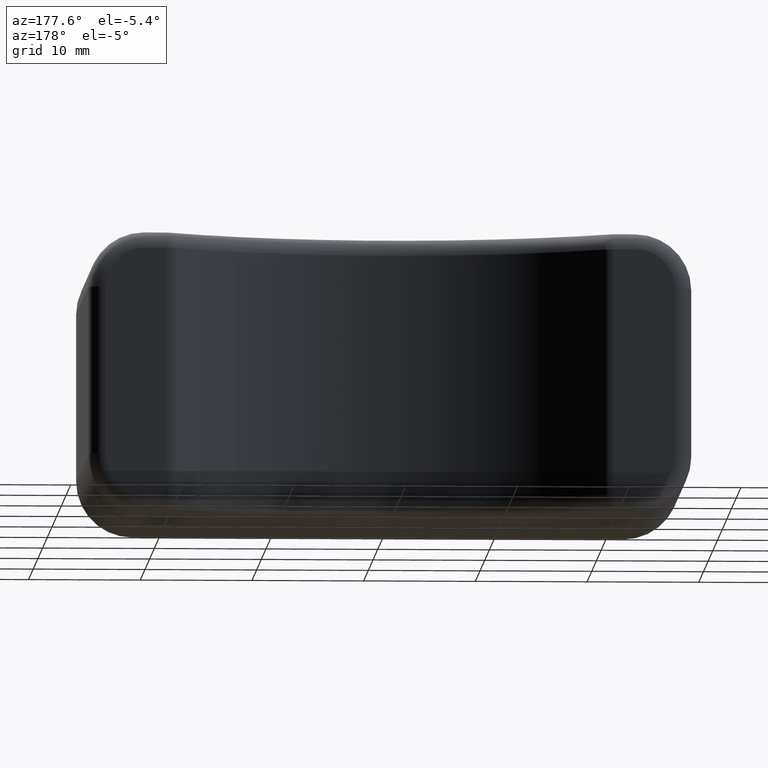
[diagram: clean part render]
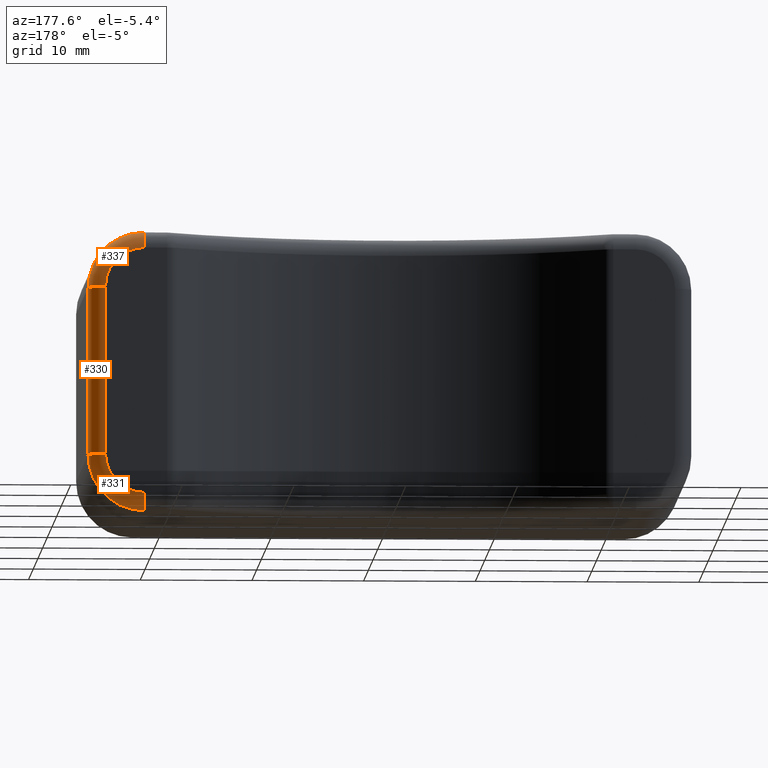
[diagram: same view with one multi-face feature highlighted, each face labeled with its STEP entity id]
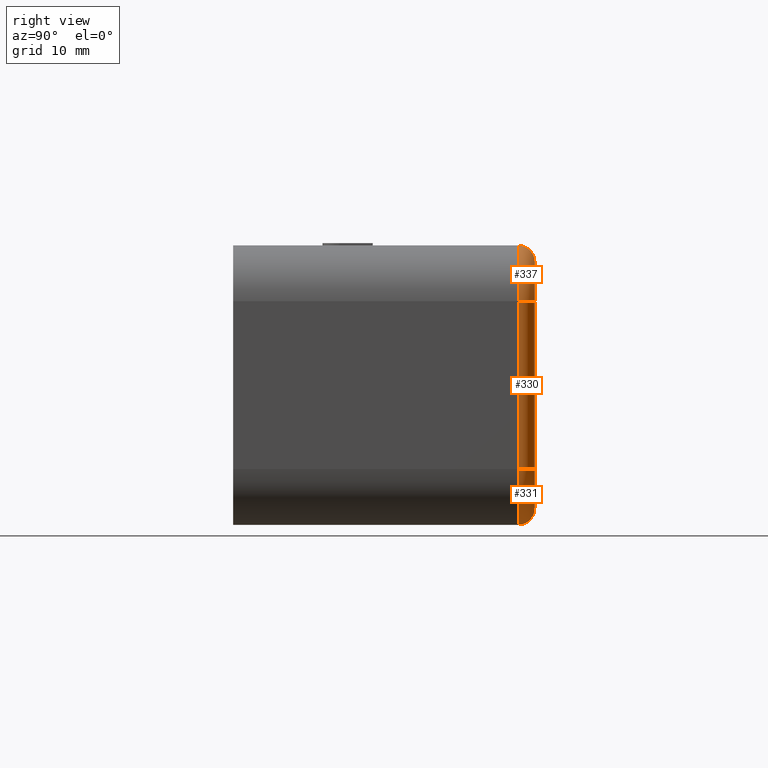
[diagram: same view with one multi-face feature highlighted, each face labeled with its STEP entity id]
A machine part, auxiliary view. The highlighted faces form ONE feature: a constant-radius fillet chain: 3 tangent blend faces with common blend radius 1.5 mm. The faces share edges in the B-rep.
A second angle (right view) of the same feature is appended — it is thin or edge-on in the first view.
Their STEP definitions:
[1] entity #337 (Torus):
#337 = ADVANCED_FACE( '', ( #972 ), #973, .T. );
#972 = FACE_OUTER_BOUND( '', #1672, .T. );
#973 = TOROIDAL_SURFACE( '', #1673, 3.50000000000000, 1.50000000000000 );
#1672 = EDGE_LOOP( '', ( #3931, #3932, #3933, #3934 ) );
#1673 = AXIS2_PLACEMENT_3D( '', #3935, #3936, #3937 );
#3931 = ORIENTED_EDGE( '', *, *, #5216, .F. );
#3932 = ORIENTED_EDGE( '', *, *, #4743, .F. );
#3933 = ORIENTED_EDGE( '', *, *, #5207, .F. );
#3934 = ORIENTED_EDGE( '', *, *, #5202, .F. );
#3935 = CARTESIAN_POINT( '', ( 22.0000000000000, 25.5000000000000, 7.50000000000000 ) );
#3936 = DIRECTION( '', ( 0.000000000000000, 1.00000000000000, 0.000000000000000 ) );
#3937 = DIRECTION( '', ( 0.000000000000000, 0.000000000000000, 1.00000000000000 ) );
#4743 = EDGE_CURVE( '', #5848, #5776, #5850, .F. );
#5202 = EDGE_CURVE( '', #6548, #6550, #6551, .T. );
#5207 = EDGE_CURVE( '', #6550, #5848, #6557, .T. );
#5216 = EDGE_CURVE( '', #5776, #6548, #6566, .T. );
#5776 = VERTEX_POINT( '', #7394 );
#5848 = VERTEX_POINT( '', #7494 );
#5850 = CIRCLE( '', #7497, 5.00000000000000 );
#6548 = VERTEX_POINT( '', #8541 );
#6550 = VERTEX_POINT( '', #8544 );
#6551 = CIRCLE( '', #8545, 3.50000000000000 );
#6557 = CIRCLE( '', #8553, 1.50000000000000 );
#6566 = CIRCLE( '', #8562, 1.50000000000000 );
#7394 = CARTESIAN_POINT( '', ( 22.0000000000000, 25.5000000000000, 12.5000000000000 ) );
#7494 = CARTESIAN_POINT( '', ( 27.0000000000000, 25.5000000000000, 7.50000000000000 ) );
#7497 = AXIS2_PLACEMENT_3D( '', #9029, #9030, #9031 );
#8541 = CARTESIAN_POINT( '', ( 22.0000000000000, 27.0000000000000, 11.0000000000000 ) );
#8544 = CARTESIAN_POINT( '', ( 25.5000000000000, 27.0000000000000, 7.50000000000000 ) );
#8545 = AXIS2_PLACEMENT_3D( '', #9712, #9713, #9714 );
#8553 = AXIS2_PLACEMENT_3D( '', #9723, #9724, #9725 );
#8562 = AXIS2_PLACEMENT_3D( '', #9750, #9751, #9752 );
#9029 = CARTESIAN_POINT( '', ( 22.0000000000000, 25.5000000000000, 7.50000000000000 ) );
#9030 = DIRECTION( '', ( 0.000000000000000, 1.00000000000000, 0.000000000000000 ) );
#9031 = DIRECTION( '', ( 0.000000000000000, 0.000000000000000, 1.00000000000000 ) );
#9712 = CARTESIAN_POINT( '', ( 22.0000000000000, 27.0000000000000, 7.50000000000000 ) );
#9713 = DIRECTION( '', ( 0.000000000000000, 1.00000000000000, 0.000000000000000 ) );
#9714 = DIRECTION( '', ( 0.000000000000000, 0.000000000000000, 1.00000000000000 ) );
#9723 = CARTESIAN_POINT( '', ( 25.5000000000000, 25.5000000000000, 7.50000000000000 ) );
#9724 = DIRECTION( '', ( 0.000000000000000, 0.000000000000000, -1.00000000000000 ) );
#9725 = DIRECTION( '', ( -1.00000000000000, 0.000000000000000, 0.000000000000000 ) );
#9750 = CARTESIAN_POINT( '', ( 22.0000000000000, 25.5000000000000, 11.0000000000000 ) );
#9751 = DIRECTION( '', ( -1.00000000000000, 0.000000000000000, 0.000000000000000 ) );
#9752 = DIRECTION( '', ( 0.000000000000000, 0.000000000000000, 1.00000000000000 ) );
[2] entity #330 (Cylinder):
#330 = ADVANCED_FACE( '', ( #958 ), #959, .T. );
#958 = FACE_OUTER_BOUND( '', #1658, .T. );
#959 = CYLINDRICAL_SURFACE( '', #1659, 1.50000000000000 );
#1658 = EDGE_LOOP( '', ( #3883, #3884, #3885, #3886 ) );
#1659 = AXIS2_PLACEMENT_3D( '', #3887, #3888, #3889 );
#3883 = ORIENTED_EDGE( '', *, *, #5207, .T. );
#3884 = ORIENTED_EDGE( '', *, *, #5205, .F. );
#3885 = ORIENTED_EDGE( '', *, *, #5208, .F. );
#3886 = ORIENTED_EDGE( '', *, *, #5203, .F. );
#3887 = CARTESIAN_POINT( '', ( 25.5000000000000, 25.5000000000000, -12.5000000000000 ) );
#3888 = DIRECTION( '', ( 0.000000000000000, 0.000000000000000, -1.00000000000000 ) );
#3889 = DIRECTION( '', ( 1.00000000000000, 0.000000000000000, 0.000000000000000 ) );
#5203 = EDGE_CURVE( '', #6550, #6552, #6553, .F. );
#5205 = EDGE_CURVE( '', #5844, #5848, #6555, .T. );
#5207 = EDGE_CURVE( '', #6550, #5848, #6557, .T. );
#5208 = EDGE_CURVE( '', #6552, #5844, #6558, .T. );
#5844 = VERTEX_POINT( '', #7488 );
#5848 = VERTEX_POINT( '', #7494 );
#6550 = VERTEX_POINT( '', #8544 );
#6552 = VERTEX_POINT( '', #8546 );
#6553 = LINE( '', #8547, #8548 );
#6555 = LINE( '', #8550, #8551 );
#6557 = CIRCLE( '', #8553, 1.50000000000000 );
#6558 = CIRCLE( '', #8554, 1.50000000000000 );
#7488 = CARTESIAN_POINT( '', ( 27.0000000000000, 25.5000000000000, -7.50000000000000 ) );
#7494 = CARTESIAN_POINT( '', ( 27.0000000000000, 25.5000000000000, 7.50000000000000 ) );
#8544 = CARTESIAN_POINT( '', ( 25.5000000000000, 27.0000000000000, 7.50000000000000 ) );
#8546 = CARTESIAN_POINT( '', ( 25.5000000000000, 27.0000000000000, -7.50000000000000 ) );
#8547 = CARTESIAN_POINT( '', ( 25.5000000000000, 27.0000000000000, -12.5000000000000 ) );
#8548 = VECTOR( '', #9715, 1000.00000000000 );
#8550 = CARTESIAN_POINT( '', ( 27.0000000000000, 25.5000000000000, -12.5000000000000 ) );
#8551 = VECTOR( '', #9719, 1000.00000000000 );
#8553 = AXIS2_PLACEMENT_3D( '', #9723, #9724, #9725 );
#8554 = AXIS2_PLACEMENT_3D( '', #9726, #9727, #9728 );
#9715 = DIRECTION( '', ( 0.000000000000000, 0.000000000000000, 1.00000000000000 ) );
#9719 = DIRECTION( '', ( 0.000000000000000, 0.000000000000000, 1.00000000000000 ) );
#9723 = CARTESIAN_POINT( '', ( 25.5000000000000, 25.5000000000000, 7.50000000000000 ) );
#9724 = DIRECTION( '', ( 0.000000000000000, 0.000000000000000, -1.00000000000000 ) );
#9725 = DIRECTION( '', ( -1.00000000000000, 0.000000000000000, 0.000000000000000 ) );
#9726 = CARTESIAN_POINT( '', ( 25.5000000000000, 25.5000000000000, -7.50000000000000 ) );
#9727 = DIRECTION( '', ( 0.000000000000000, 0.000000000000000, -1.00000000000000 ) );
#9728 = DIRECTION( '', ( -1.00000000000000, 0.000000000000000, 0.000000000000000 ) );
[3] entity #331 (Torus):
#331 = ADVANCED_FACE( '', ( #960 ), #961, .T. );
#960 = FACE_OUTER_BOUND( '', #1660, .T. );
#961 = TOROIDAL_SURFACE( '', #1661, 3.50000000000000, 1.50000000000000 );
#1660 = EDGE_LOOP( '', ( #3890, #3891, #3892, #3893 ) );
#1661 = AXIS2_PLACEMENT_3D( '', #3894, #3895, #3896 );
#3890 = ORIENTED_EDGE( '', *, *, #5208, .T. );
#3891 = ORIENTED_EDGE( '', *, *, #4739, .F. );
#3892 = ORIENTED_EDGE( '', *, *, #5209, .F. );
#3893 = ORIENTED_EDGE( '', *, *, #5204, .F. );
#3894 = CARTESIAN_POINT( '', ( 22.0000000000000, 25.5000000000000, -7.50000000000000 ) );
#3895 = DIRECTION( '', ( 0.000000000000000, 1.00000000000000, 0.000000000000000 ) );
#3896 = DIRECTION( '', ( 0.000000000000000, 0.000000000000000, 1.00000000000000 ) );
#4739 = EDGE_CURVE( '', #5824, #5844, #5845, .F. );
#5204 = EDGE_CURVE( '', #6552, #6543, #6554, .T. );
#5208 = EDGE_CURVE( '', #6552, #5844, #6558, .T. );
#5209 = EDGE_CURVE( '', #6543, #5824, #6559, .T. );
#5824 = VERTEX_POINT( '', #7463 );
#5844 = VERTEX_POINT( '', #7488 );
#5845 = CIRCLE( '', #7489, 5.00000000000000 );
#6543 = VERTEX_POINT( '', #8534 );
#6552 = VERTEX_POINT( '', #8546 );
#6554 = CIRCLE( '', #8549, 3.50000000000000 );
#6558 = CIRCLE( '', #8554, 1.50000000000000 );
#6559 = CIRCLE( '', #8555, 1.50000000000000 );
#7463 = CARTESIAN_POINT( '', ( 22.0000000000000, 25.5000000000000, -12.5000000000000 ) );
#7488 = CARTESIAN_POINT( '', ( 27.0000000000000, 25.5000000000000, -7.50000000000000 ) );
#7489 = AXIS2_PLACEMENT_3D( '', #9023, #9024, #9025 );
#8534 = CARTESIAN_POINT( '', ( 22.0000000000000, 27.0000000000000, -11.0000000000000 ) );
#8546 = CARTESIAN_POINT( '', ( 25.5000000000000, 27.0000000000000, -7.50000000000000 ) );
#8549 = AXIS2_PLACEMENT_3D( '', #9716, #9717, #9718 );
#8554 = AXIS2_PLACEMENT_3D( '', #9726, #9727, #9728 );
#8555 = AXIS2_PLACEMENT_3D( '', #9729, #9730, #9731 );
#9023 = CARTESIAN_POINT( '', ( 22.0000000000000, 25.5000000000000, -7.50000000000000 ) );
#9024 = DIRECTION( '', ( 0.000000000000000, 1.00000000000000, 0.000000000000000 ) );
#9025 = DIRECTION( '', ( 0.000000000000000, 0.000000000000000, 1.00000000000000 ) );
#9716 = CARTESIAN_POINT( '', ( 22.0000000000000, 27.0000000000000, -7.50000000000000 ) );
#9717 = DIRECTION( '', ( 0.000000000000000, 1.00000000000000, 0.000000000000000 ) );
#9718 = DIRECTION( '', ( 0.000000000000000, 0.000000000000000, 1.00000000000000 ) );
#9726 = CARTESIAN_POINT( '', ( 25.5000000000000, 25.5000000000000, -7.50000000000000 ) );
#9727 = DIRECTION( '', ( 0.000000000000000, 0.000000000000000, -1.00000000000000 ) );
#9728 = DIRECTION( '', ( -1.00000000000000, 0.000000000000000, 0.000000000000000 ) );
#9729 = CARTESIAN_POINT( '', ( 22.0000000000000, 25.5000000000000, -11.0000000000000 ) );
#9730 = DIRECTION( '', ( -1.00000000000000, 0.000000000000000, 0.000000000000000 ) );
#9731 = DIRECTION( '', ( 0.000000000000000, 0.000000000000000, 1.00000000000000 ) );